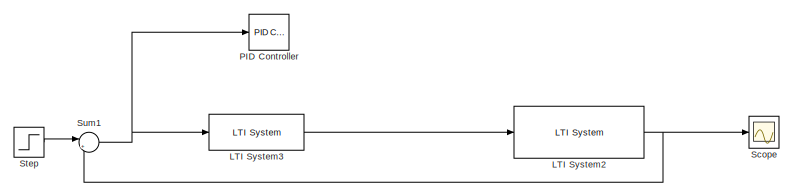
[diagram: root canvas - part 1/2, top right region]
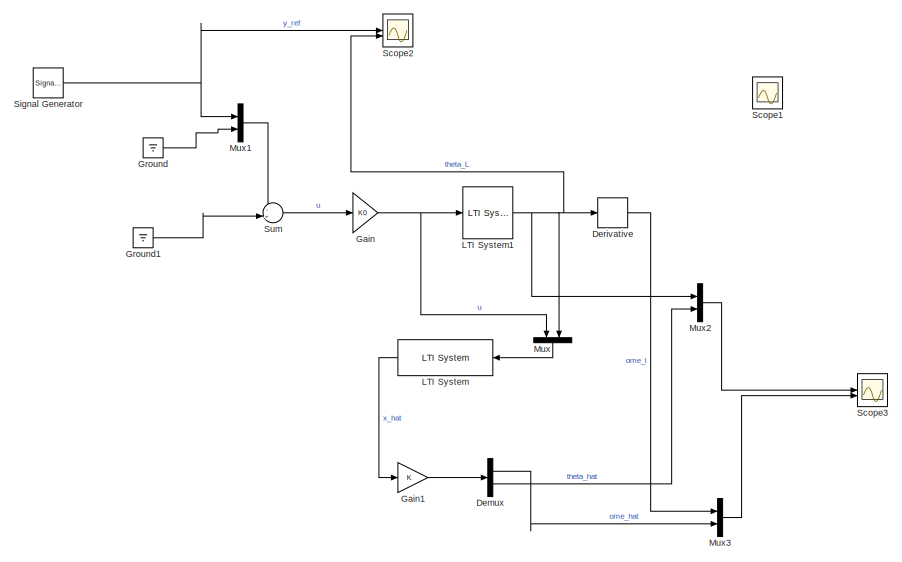
[diagram: root canvas - part 2/2, left side, full height]
MODEL slx_c4b2ccd53255
KIND model
CONFIG AbsTol = auto
CONFIG EnableMultiTasking = on
CONFIG FixedStep = 0.002
CONFIG MaxStep = auto
CONFIG MinStep = auto
CONFIG RelTol = 1e-3
CONFIG SampleTimeConstraint = Unconstrained
CONFIG SolverName = VariableStepAuto
CONFIG StartTime = 0.0
CONFIG StopTime = 5
BLOCK [Demux] Demux
  Commented = on
  Outputs = 2
BLOCK [Derivative] Derivative
  CoefficientInTFapproximation = 100
  Commented = on
BLOCK [Gain] Gain
  Commented = on
  Gain = K0
  Multiplication = Matrix(K*u)
BLOCK [Gain] Gain1
  Commented = on
BLOCK [Ground] Ground
  Commented = on
BLOCK [Ground] Ground1
  Commented = on
BLOCK [Reference] LTI System  REF=cstblocks/LTI System
  Commented = on
  NameLocation = top
  SourceBlock = cstblocks/LTI System
  SourceType = LTI Block
BLOCK [Reference] LTI System1  REF=cstblocks/LTI System
  Commented = on
  SourceBlock = cstblocks/LTI System
  SourceType = LTI Block
BLOCK [Reference] LTI System2  REF=cstblocks/LTI System
  SourceBlock = cstblocks/LTI System
  SourceType = LTI Block
BLOCK [Reference] LTI System3  REF=cstblocks/LTI System
  SourceBlock = cstblocks/LTI System
  SourceType = LTI Block
BLOCK [Mux] Mux
  Commented = on
  DisplayOption = bar
  Inputs = 2
  NameLocation = left
BLOCK [Mux] Mux1
  Commented = on
  DisplayOption = bar
  Inputs = 2
BLOCK [Mux] Mux2
  Commented = on
  DisplayOption = bar
  Inputs = 2
BLOCK [Mux] Mux3
  Commented = on
  DisplayOption = bar
  Inputs = 2
BLOCK [Reference] PID Controller  REF=slpidlib/PID Controller
  LibrarySourceBlock = simulink/Continuous/PID Controller
  SourceBlock = slpidlib/PID Controller
  SourceType = PID 1dof
BLOCK [Scope] Scope
  Floating = off
  NumInputPorts = 1
  ScopeSpecificationString = Simulink.scopes.TimeScopeBlockCfg('CurrentConfiguration', extmgr.ConfigurationSet(extmgr.Configuration('Core','General UI',true),extmgr.Configuration('Core','Source UI',true),extmgr.Configuration('Sources','WiredSimulink',true,'DataLoggingVariableName','ScopeData1'),extmgr.Configuration('Visuals','Time Domain',true,'SerializedDisplays',{struct('MinYLimReal','-3.25628','MaxYLimReal','29.30656','YLa...<+1463ch>
BLOCK [Scope] Scope1
  Commented = on
  Floating = off
  NumInputPorts = 3
  ScopeSpecificationString = Simulink.scopes.TimeScopeBlockCfg('CurrentConfiguration', extmgr.ConfigurationSet(extmgr.Configuration('Core','General UI',true),extmgr.Configuration('Core','Source UI',true),extmgr.Configuration('Sources','WiredSimulink',true),extmgr.Configuration('Visuals','Time Domain',true,'SerializedDisplays',{struct('MinYLimReal','-11.48835','MaxYLimReal','11.50351','YLabelReal','','MinYLimMag','0.00000','Ma...<+1562ch>
BLOCK [Scope] Scope2
  Commented = on
  Floating = off
  NumInputPorts = 2
  ScopeSpecificationString = Simulink.scopes.TimeScopeBlockCfg('CurrentConfiguration', extmgr.ConfigurationSet(extmgr.Configuration('Core','General UI',true),extmgr.Configuration('Core','Source UI',true),extmgr.Configuration('Sources','WiredSimulink',true,'DataLoggingVariableName','ScopeData2'),extmgr.Configuration('Visuals','Time Domain',true,'SerializedDisplays',{struct('MinYLimReal','-5.80628','MaxYLimReal','32.25652','YLa...<+1376ch>
BLOCK [Scope] Scope3
  Commented = on
  Floating = off
  NumInputPorts = 2
  ScopeSpecificationString = Simulink.scopes.TimeScopeBlockCfg('CurrentConfiguration', extmgr.ConfigurationSet(extmgr.Configuration('Core','General UI',true),extmgr.Configuration('Core','Source UI',true),extmgr.Configuration('Sources','WiredSimulink',true,'DataLoggingVariableName','ScopeData3'),extmgr.Configuration('Visuals','Time Domain',true,'SerializedDisplays',{struct('MinYLimReal','-35.85605','MaxYLimReal','35.54372','YL...<+2083ch>
BLOCK [SignalGenerator] Signal Generator
  Amplitude = 2
  Commented = on
  Frequency = 2
  Units = rad/sec
  WaveForm = square
BLOCK [Step] Step
  After = 25
  SampleTime = 0
BLOCK [Sum] Sum
  Commented = on
  Inputs = -+|
BLOCK [Sum] Sum1
  Inputs = |+-
LINE Demux:1 -> Mux3:2
LINE Demux:2 -> Mux2:2
LINE Derivative:1 -> Mux3:1
LINE Gain1:1 -> Demux:1
NET Gain:1 -> LTI System1:1, Mux:1
LINE Ground1:1 -> Sum:2
LINE Ground:1 -> Mux1:2
NET LTI System1:1 -> Derivative:1, Mux2:1, Mux:2, Scope2:2
NET LTI System2:1 -> Scope:1, Sum1:2
LINE LTI System3:1 -> LTI System2:1
LINE LTI System:1 -> Gain1:1
LINE Mux1:1 -> Sum:1
LINE Mux2:1 -> Scope3:1
LINE Mux3:1 -> Scope3:2
LINE Mux:1 -> LTI System:1
NET Signal Generator:1 -> Mux1:1, Scope2:1
LINE Step:1 -> Sum1:1
NET Sum1:1 -> LTI System3:1, PID Controller:1
LINE Sum:1 -> Gain:1
note: NET lines group one-source signal fan-out (src -> all destinations, sorted); 1:1 wires keep LINE
